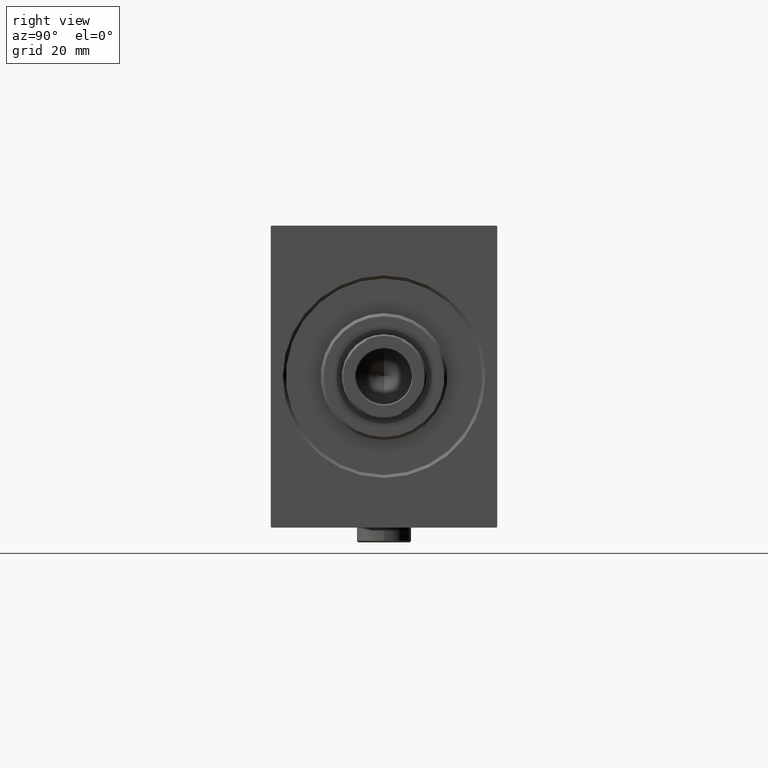
[diagram: clean part render]
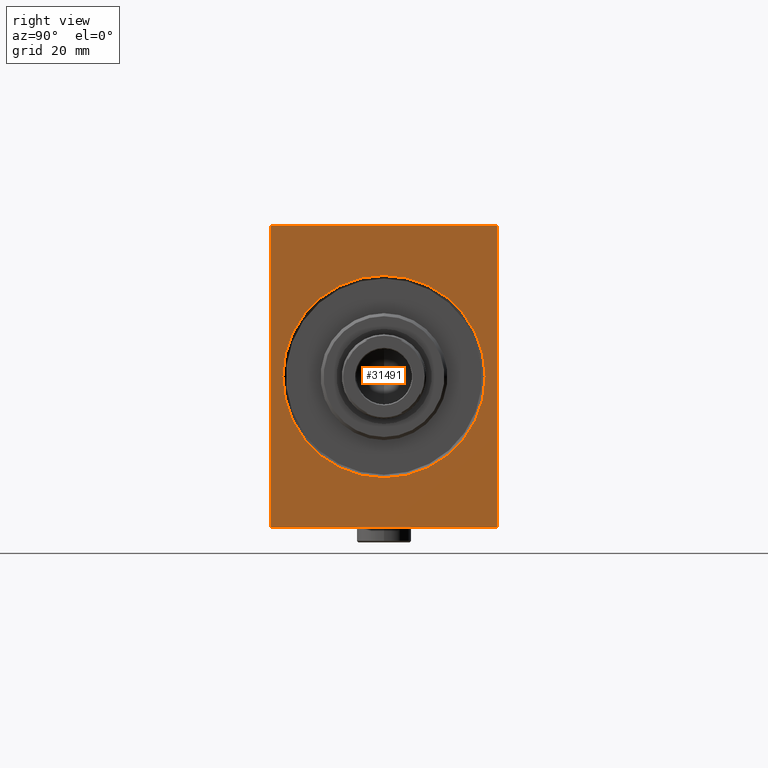
[diagram: same view with one face highlighted and labeled with its STEP entity id]
A machine part, right view. The second image highlights one B-rep face of the part: STEP entity #31491.
In plain terms, the highlighted planar face has unit normal (-1, 0, 0).
Its self-contained STEP definition (entity closure, byte-faithful):
#270 = CARTESIAN_POINT ( 'NONE',  ( 0.000000000000000000, -37.50000000000000000, -49.70000000000002416 ) ) ;
#755 = CARTESIAN_POINT ( 'NONE',  ( 0.000000000000000000, -37.50000000000000000, 50.00000000000000000 ) ) ;
#1012 = ORIENTED_EDGE ( 'NONE', *, *, #13172, .F. ) ;
#1403 = CARTESIAN_POINT ( 'NONE',  ( 0.000000000000000000, -37.19999999999996732, 50.00000000000000000 ) ) ;
#1481 = CARTESIAN_POINT ( 'NONE',  ( 0.000000000000000000, 0.000000000000000000, 0.000000000000000000 ) ) ;
#1715 = CARTESIAN_POINT ( 'NONE',  ( 0.000000000000000000, 4.102566777143633774E-15, -33.50000000000000000 ) ) ;
#2584 = CARTESIAN_POINT ( 'NONE',  ( 0.000000000000000000, -37.50000000000000000, 49.69999999999998153 ) ) ;
#3062 = DIRECTION ( 'NONE',  ( 1.000000000000000000, 0.000000000000000000, 0.000000000000000000 ) ) ;
#4475 = VECTOR ( 'NONE', #33564, 1000.000000000000000 ) ;
#5584 = CARTESIAN_POINT ( 'NONE',  ( 0.000000000000000000, 37.19999999999999574, 50.00000000000001421 ) ) ;
#7349 = CARTESIAN_POINT ( 'NONE',  ( 0.000000000000000000, 0.000000000000000000, 0.000000000000000000 ) ) ;
#8437 = DIRECTION ( 'NONE',  ( 1.000000000000000000, 0.000000000000000000, 0.000000000000000000 ) ) ;
#8514 = DIRECTION ( 'NONE',  ( -0.000000000000000000, 0.7071067811865556774, -0.7071067811865393571 ) ) ;
#9275 = EDGE_CURVE ( 'NONE', #17800, #35462, #17050, .T. ) ;
#9507 = EDGE_CURVE ( 'NONE', #41020, #16644, #21368, .T. ) ;
#9581 = PLANE ( 'NONE',  #14767 ) ;
#9857 = CARTESIAN_POINT ( 'NONE',  ( 0.000000000000000000, 0.000000000000000000, 33.50000000000000000 ) ) ;
#10022 = FACE_BOUND ( 'NONE', #21265, .T. ) ;
#10862 = CARTESIAN_POINT ( 'NONE',  ( 0.000000000000000000, -37.50000000000000000, 49.69999999999998153 ) ) ;
#11011 = VERTEX_POINT ( 'NONE', #27359 ) ;
#11183 = EDGE_CURVE ( 'NONE', #41020, #37379, #18598, .T. ) ;
#11706 = LINE ( 'NONE', #15511, #12334 ) ;
#12334 = VECTOR ( 'NONE', #39733, 1000.000000000000000 ) ;
#12522 = DIRECTION ( 'NONE',  ( 0.000000000000000000, 1.000000000000000000, 9.251858538542970348E-17 ) ) ;
#12750 = LINE ( 'NONE', #44136, #40214 ) ;
#13172 = EDGE_CURVE ( 'NONE', #11011, #29799, #12750, .T. ) ;
#14302 = DIRECTION ( 'NONE',  ( 0.000000000000000000, 0.000000000000000000, -1.000000000000000000 ) ) ;
#14767 = AXIS2_PLACEMENT_3D ( 'NONE', #33353, #3062, #22803 ) ;
#15285 = CARTESIAN_POINT ( 'NONE',  ( 0.000000000000000000, 37.49999999999999289, 49.70000000000003126 ) ) ;
#15511 = CARTESIAN_POINT ( 'NONE',  ( 0.000000000000000000, 37.50000000000000711, -49.70000000000004547 ) ) ;
#15796 = EDGE_CURVE ( 'NONE', #19772, #29799, #11706, .T. ) ;
#16135 = EDGE_CURVE ( 'NONE', #19772, #37379, #23221, .T. ) ;
#16644 = VERTEX_POINT ( 'NONE', #1403 ) ;
#17050 = CIRCLE ( 'NONE', #42161, 33.50000000000000000 ) ;
#17232 = VECTOR ( 'NONE', #8514, 1000.000000000000000 ) ;
#17393 = ORIENTED_EDGE ( 'NONE', *, *, #11183, .T. ) ;
#17790 = DIRECTION ( 'NONE',  ( 0.000000000000000000, -1.000000000000000000, -1.850371707708594563E-16 ) ) ;
#17800 = VERTEX_POINT ( 'NONE', #1715 ) ;
#18057 = ORIENTED_EDGE ( 'NONE', *, *, #34806, .F. ) ;
#18598 = LINE ( 'NONE', #5584, #17232 ) ;
#19107 = DIRECTION ( 'NONE',  ( -0.000000000000000000, -0.7071067811865474617, 0.7071067811865474617 ) ) ;
#19772 = VERTEX_POINT ( 'NONE', #34905 ) ;
#20783 = DIRECTION ( 'NONE',  ( 1.000000000000000000, 0.000000000000000000, 0.000000000000000000 ) ) ;
#21265 = EDGE_LOOP ( 'NONE', ( #23077, #28662 ) ) ;
#21368 = LINE ( 'NONE', #34846, #41452 ) ;
#21902 = EDGE_LOOP ( 'NONE', ( #42695, #17393, #26000, #37115, #1012, #35360, #18057, #40814 ) ) ;
#22803 = DIRECTION ( 'NONE',  ( 0.000000000000000000, 0.000000000000000000, -1.000000000000000000 ) ) ;
#22895 = VERTEX_POINT ( 'NONE', #270 ) ;
#23077 = ORIENTED_EDGE ( 'NONE', *, *, #37142, .T. ) ;
#23221 = LINE ( 'NONE', #36922, #4475 ) ;
#23485 = AXIS2_PLACEMENT_3D ( 'NONE', #1481, #8437, #36412 ) ;
#24746 = DIRECTION ( 'NONE',  ( -0.000000000000000000, 0.7071067811865556774, 0.7071067811865392461 ) ) ;
#24981 = LINE ( 'NONE', #10862, #31125 ) ;
#26000 = ORIENTED_EDGE ( 'NONE', *, *, #16135, .F. ) ;
#27030 = EDGE_CURVE ( 'NONE', #11011, #22895, #39754, .T. ) ;
#27359 = CARTESIAN_POINT ( 'NONE',  ( 0.000000000000000000, -37.20000000000000284, -50.00000000000001421 ) ) ;
#27887 = EDGE_CURVE ( 'NONE', #39357, #16644, #24981, .T. ) ;
#28662 = ORIENTED_EDGE ( 'NONE', *, *, #9275, .T. ) ;
#29799 = VERTEX_POINT ( 'NONE', #30891 ) ;
#30676 = CIRCLE ( 'NONE', #23485, 33.50000000000000000 ) ;
#30891 = CARTESIAN_POINT ( 'NONE',  ( 0.000000000000000000, 37.20000000000001705, -50.00000000000000711 ) ) ;
#31125 = VECTOR ( 'NONE', #24746, 1000.000000000000114 ) ;
#31491 = ADVANCED_FACE ( 'NONE', ( #10022, #40757 ), #9581, .F. ) ;
#31918 = CARTESIAN_POINT ( 'NONE',  ( 0.000000000000000000, -37.20000000000000284, -50.00000000000001421 ) ) ;
#33353 = CARTESIAN_POINT ( 'NONE',  ( 0.000000000000000000, 0.000000000000000000, 0.000000000000000000 ) ) ;
#33564 = DIRECTION ( 'NONE',  ( 0.000000000000000000, -1.387778780781445182E-16, 1.000000000000000000 ) ) ;
#34806 = EDGE_CURVE ( 'NONE', #39357, #22895, #44278, .T. ) ;
#34846 = CARTESIAN_POINT ( 'NONE',  ( 0.000000000000000000, 37.49999999999999289, 50.00000000000001421 ) ) ;
#34905 = CARTESIAN_POINT ( 'NONE',  ( 0.000000000000000000, 37.50000000000000711, -49.70000000000004547 ) ) ;
#35360 = ORIENTED_EDGE ( 'NONE', *, *, #27030, .T. ) ;
#35427 = VECTOR ( 'NONE', #19107, 1000.000000000000114 ) ;
#35462 = VERTEX_POINT ( 'NONE', #9857 ) ;
#35623 = VECTOR ( 'NONE', #38224, 1000.000000000000000 ) ;
#36412 = DIRECTION ( 'NONE',  ( 0.000000000000000000, 0.000000000000000000, -1.000000000000000000 ) ) ;
#36922 = CARTESIAN_POINT ( 'NONE',  ( 0.000000000000000000, 37.50000000000000711, -50.00000000000000711 ) ) ;
#37115 = ORIENTED_EDGE ( 'NONE', *, *, #15796, .T. ) ;
#37142 = EDGE_CURVE ( 'NONE', #35462, #17800, #30676, .T. ) ;
#37379 = VERTEX_POINT ( 'NONE', #15285 ) ;
#38224 = DIRECTION ( 'NONE',  ( 0.000000000000000000, 0.000000000000000000, -1.000000000000000000 ) ) ;
#39357 = VERTEX_POINT ( 'NONE', #2584 ) ;
#39733 = DIRECTION ( 'NONE',  ( 0.000000000000000000, -0.7071067811865721087, -0.7071067811865230368 ) ) ;
#39754 = LINE ( 'NONE', #31918, #35427 ) ;
#40214 = VECTOR ( 'NONE', #12522, 1000.000000000000000 ) ;
#40757 = FACE_OUTER_BOUND ( 'NONE', #21902, .T. ) ;
#40814 = ORIENTED_EDGE ( 'NONE', *, *, #27887, .T. ) ;
#41020 = VERTEX_POINT ( 'NONE', #44371 ) ;
#41452 = VECTOR ( 'NONE', #17790, 1000.000000000000000 ) ;
#42161 = AXIS2_PLACEMENT_3D ( 'NONE', #7349, #20783, #14302 ) ;
#42695 = ORIENTED_EDGE ( 'NONE', *, *, #9507, .F. ) ;
#44136 = CARTESIAN_POINT ( 'NONE',  ( 0.000000000000000000, -37.50000000000000000, -50.00000000000001421 ) ) ;
#44278 = LINE ( 'NONE', #755, #35623 ) ;
#44371 = CARTESIAN_POINT ( 'NONE',  ( 0.000000000000000000, 37.19999999999999574, 50.00000000000001421 ) ) ;